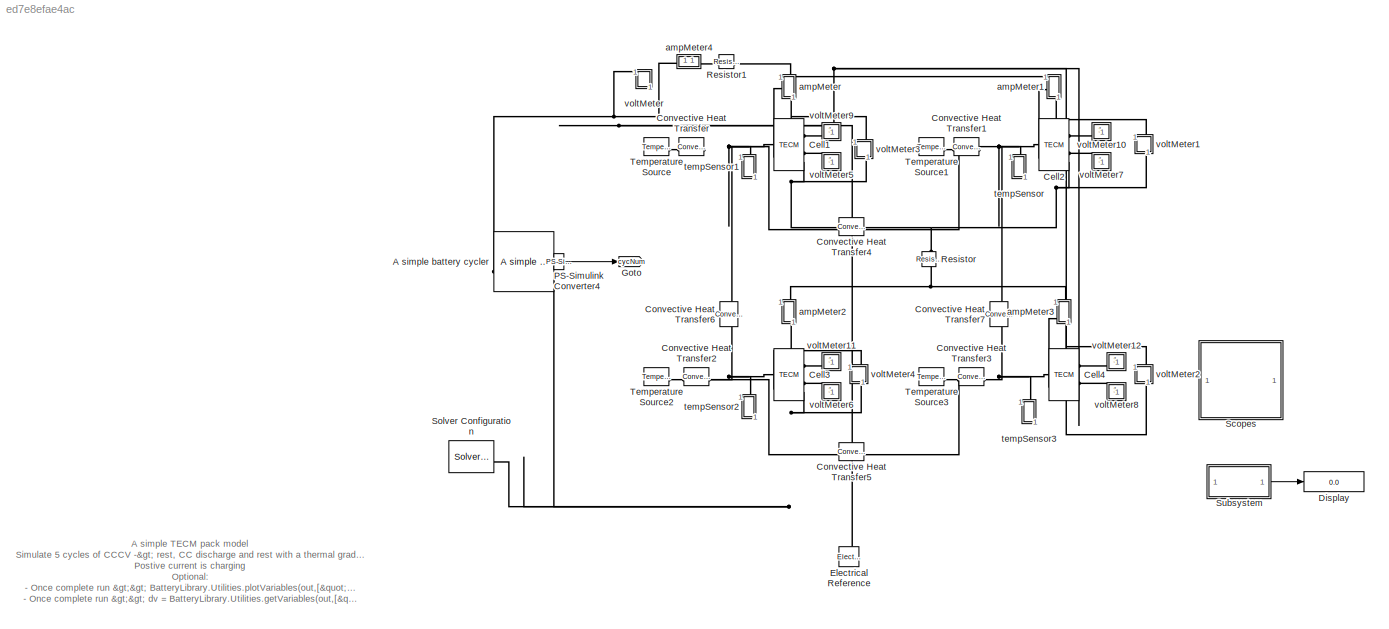
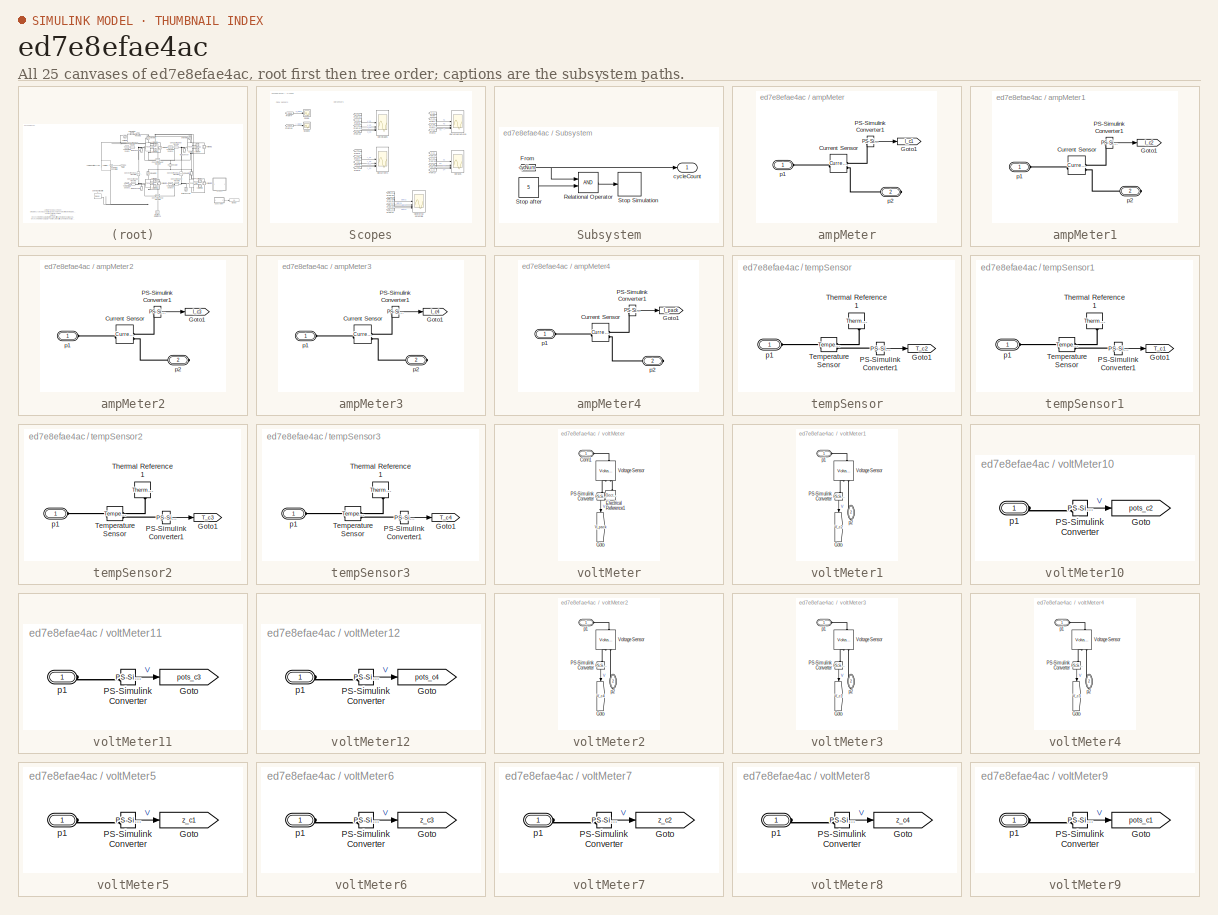
[diagram: thumbnail index - all 25 canvases of the model, root first then tree order]
MODEL slx_ed7e8efae4ac
KIND model
CONFIG AbsTol = auto
CONFIG EnableMultiTasking = off
CONFIG FixedStep = auto
CONFIG MaxStep = auto
CONFIG MinStep = auto
CONFIG RelTol = auto
CONFIG SampleTimeConstraint = Unconstrained
CONFIG SolverName = daessc
CONFIG StartTime = 0.0
CONFIG StopTime = 20E4
BLOCK [Reference] A simple battery cycler  REF=BatteryLibrary_lib/Utilities/A simple battery
cycler
  SourceBlock = BatteryLibrary_lib/Utilities/A simple battery\ncycler
  SourceType = A simple battery\ncycler
BLOCK [Reference] Cell1  REF=BatteryLibrary_lib/Models/TECM
  SourceBlock = BatteryLibrary_lib/Models/TECM
  SourceType = TECM
BLOCK [Reference] Cell2  REF=BatteryLibrary_lib/Models/TECM
  SourceBlock = BatteryLibrary_lib/Models/TECM
  SourceType = TECM
BLOCK [Reference] Cell3  REF=BatteryLibrary_lib/Models/TECM
  SourceBlock = BatteryLibrary_lib/Models/TECM
  SourceType = TECM
BLOCK [Reference] Cell4  REF=BatteryLibrary_lib/Models/TECM
  SourceBlock = BatteryLibrary_lib/Models/TECM
  SourceType = TECM
BLOCK [Reference] Convective Heat Transfer  REF=fl_lib/Thermal/Thermal Elements/Convective Heat
Transfer
  NameLocation = top
  SourceBlock = fl_lib/Thermal/Thermal Elements/Convective Heat\nTransfer
  SourceType = Convective Heat\nTransfer
BLOCK [Reference] Convective Heat Transfer1  REF=fl_lib/Thermal/Thermal Elements/Convective Heat
Transfer
  NameLocation = top
  SourceBlock = fl_lib/Thermal/Thermal Elements/Convective Heat\nTransfer
  SourceType = Convective Heat\nTransfer
BLOCK [Reference] Convective Heat Transfer2  REF=fl_lib/Thermal/Thermal Elements/Convective Heat
Transfer
  NameLocation = top
  SourceBlock = fl_lib/Thermal/Thermal Elements/Convective Heat\nTransfer
  SourceType = Convective Heat\nTransfer
BLOCK [Reference] Convective Heat Transfer3  REF=fl_lib/Thermal/Thermal Elements/Convective Heat
Transfer
  NameLocation = top
  SourceBlock = fl_lib/Thermal/Thermal Elements/Convective Heat\nTransfer
  SourceType = Convective Heat\nTransfer
BLOCK [Reference] Convective Heat Transfer4  REF=fl_lib/Thermal/Thermal Elements/Convective Heat
Transfer
  NameLocation = top
  SourceBlock = fl_lib/Thermal/Thermal Elements/Convective Heat\nTransfer
  SourceType = Convective Heat\nTransfer
BLOCK [Reference] Convective Heat Transfer5  REF=fl_lib/Thermal/Thermal Elements/Convective Heat
Transfer
  NameLocation = top
  SourceBlock = fl_lib/Thermal/Thermal Elements/Convective Heat\nTransfer
  SourceType = Convective Heat\nTransfer
BLOCK [Reference] Convective Heat Transfer6  REF=fl_lib/Thermal/Thermal Elements/Convective Heat
Transfer
  NameLocation = left
  SourceBlock = fl_lib/Thermal/Thermal Elements/Convective Heat\nTransfer
  SourceType = Convective Heat\nTransfer
BLOCK [Reference] Convective Heat Transfer7  REF=fl_lib/Thermal/Thermal Elements/Convective Heat
Transfer
  NameLocation = left
  SourceBlock = fl_lib/Thermal/Thermal Elements/Convective Heat\nTransfer
  SourceType = Convective Heat\nTransfer
BLOCK [Display] Display
  Decimation = 1
BLOCK [Reference] Electrical Reference  REF=fl_lib/Electrical/Electrical Elements/Electrical Reference
  NameLocation = right
  SourceBlock = fl_lib/Electrical/Electrical Elements/Electrical Reference
  SourceType = Electrical Reference
BLOCK [Goto] Goto
  GotoTag = cycNum
  TagVisibility = global
BLOCK [Reference] PS-Simulink Converter4  REF=nesl_utility/PS-Simulink
Converter
  SourceBlock = nesl_utility/PS-Simulink\nConverter
  SourceType = PS-Simulink\nConverter
BLOCK [Reference] Resistor  REF=fl_lib/Electrical/Electrical Elements/Resistor
  NameLocation = right
  SourceBlock = fl_lib/Electrical/Electrical Elements/Resistor
  SourceType = Resistor
BLOCK [Reference] Resistor1  REF=fl_lib/Electrical/Electrical Elements/Resistor
  SourceBlock = fl_lib/Electrical/Electrical Elements/Resistor
  SourceType = Resistor
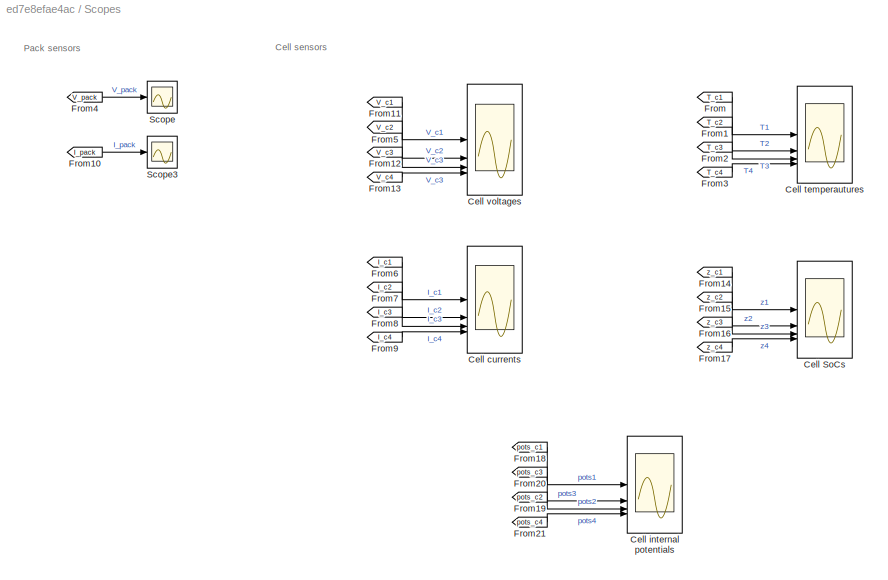
BLOCK [SubSystem] Scopes
BLOCK [Scope] Scopes/Cell SoCs
  Floating = off
  NumInputPorts = 4
  ScopeSpecificationString = Simulink.scopes.TimeScopeBlockCfg('CurrentConfiguration', extmgr.ConfigurationSet(extmgr.Configuration('Core','General UI',true),extmgr.Configuration('Core','Source UI',true),extmgr.Configuration('Sources','WiredSimulink',true,'DataLoggingVariableName','ScopeData3'),extmgr.Configuration('Visuals','Time Domain',true,'SerializedDisplays',{struct('MinYLimReal','-0.2076','MaxYLimReal','1.11915','YLabe...<+1468ch>
BLOCK [Scope] Scopes/Cell currents
  Floating = off
  NumInputPorts = 4
  ScopeSpecificationString = Simulink.scopes.TimeScopeBlockCfg('CurrentConfiguration', extmgr.ConfigurationSet(extmgr.Configuration('Core','General UI',true),extmgr.Configuration('Core','Source UI',true),extmgr.Configuration('Sources','WiredSimulink',true,'DataLoggingVariableName','ScopeData3'),extmgr.Configuration('Visuals','Time Domain',true,'SerializedDisplays',{struct('MinYLimReal','-6.40722','MaxYLimReal','3.19808','YLab...<+1544ch>
BLOCK [Scope] Scopes/Cell internal potentials
  Floating = off
  NumInputPorts = 4
  ScopeSpecificationString = Simulink.scopes.TimeScopeBlockCfg('CurrentConfiguration', extmgr.ConfigurationSet(extmgr.Configuration('Core','General UI',true),extmgr.Configuration('Core','Source UI',true),extmgr.Configuration('Sources','WiredSimulink',true,'DataLoggingVariableName','ScopeData1'),extmgr.Configuration('Visuals','Time Domain',true,'SerializedDisplays',{struct('MinYLimReal','-0.31247','MaxYLimReal','0.14166','YLab...<+3579ch>
BLOCK [Scope] Scopes/Cell temperautures
  Floating = off
  NumInputPorts = 4
  ScopeSpecificationString = Simulink.scopes.TimeScopeBlockCfg('CurrentConfiguration', extmgr.ConfigurationSet(extmgr.Configuration('Core','General UI',true),extmgr.Configuration('Core','Source UI',true),extmgr.Configuration('Sources','WiredSimulink',true,'DataLoggingVariableName','ScopeData2'),extmgr.Configuration('Visuals','Time Domain',true,'SerializedDisplays',{struct('MinYLimReal','291.6977','MaxYLimReal','319.78091','YL...<+1480ch>
BLOCK [Scope] Scopes/Cell voltages
  Floating = off
  NumInputPorts = 4
  ScopeSpecificationString = Simulink.scopes.TimeScopeBlockCfg('CurrentConfiguration', extmgr.ConfigurationSet(extmgr.Configuration('Core','General UI',true),extmgr.Configuration('Core','Source UI',true),extmgr.Configuration('Sources','WiredSimulink',true,'DataLoggingVariableName','ScopeData2'),extmgr.Configuration('Visuals','Time Domain',true,'SerializedDisplays',{struct('MinYLimReal','2.97922','MaxYLimReal','4.27957','YLabe...<+1569ch>
BLOCK [From] Scopes/From
  GotoTag = T_c1
  TagVisibility = global
BLOCK [From] Scopes/From1
  GotoTag = T_c2
  TagVisibility = global
BLOCK [From] Scopes/From10
  GotoTag = I_pack
  TagVisibility = global
BLOCK [From] Scopes/From11
  GotoTag = V_c1
  TagVisibility = global
BLOCK [From] Scopes/From12
  GotoTag = V_c3
  TagVisibility = global
BLOCK [From] Scopes/From13
  GotoTag = V_c4
  TagVisibility = global
BLOCK [From] Scopes/From14
  GotoTag = z_c1
  TagVisibility = global
BLOCK [From] Scopes/From15
  GotoTag = z_c2
  TagVisibility = global
BLOCK [From] Scopes/From16
  GotoTag = z_c3
  TagVisibility = global
BLOCK [From] Scopes/From17
  GotoTag = z_c4
  TagVisibility = global
BLOCK [From] Scopes/From18
  GotoTag = pots_c1
  TagVisibility = global
BLOCK [From] Scopes/From19
  GotoTag = pots_c2
  TagVisibility = global
BLOCK [From] Scopes/From2
  GotoTag = T_c3
  TagVisibility = global
BLOCK [From] Scopes/From20
  GotoTag = pots_c3
  TagVisibility = global
BLOCK [From] Scopes/From21
  GotoTag = pots_c4
  TagVisibility = global
BLOCK [From] Scopes/From3
  GotoTag = T_c4
  TagVisibility = global
BLOCK [From] Scopes/From4
  GotoTag = V_pack
  TagVisibility = global
BLOCK [From] Scopes/From5
  GotoTag = V_c2
  TagVisibility = global
BLOCK [From] Scopes/From6
  GotoTag = I_c1
  TagVisibility = global
BLOCK [From] Scopes/From7
  GotoTag = I_c2
  TagVisibility = global
BLOCK [From] Scopes/From8
  GotoTag = I_c3
  TagVisibility = global
BLOCK [From] Scopes/From9
  GotoTag = I_c4
  TagVisibility = global
BLOCK [Scope] Scopes/Scope
  Floating = off
  NumInputPorts = 1
  ScopeSpecificationString = Simulink.scopes.TimeScopeBlockCfg('CurrentConfiguration', extmgr.ConfigurationSet(extmgr.Configuration('Core','General UI',true),extmgr.Configuration('Core','Source UI',true),extmgr.Configuration('Sources','WiredSimulink',true,'DataLoggingVariableName','ScopeData1'),extmgr.Configuration('Visuals','Time Domain',true,'SerializedDisplays',{struct('MinYLimReal','7.48991','MaxYLimReal','8.39001','YLabe...<+1434ch>
BLOCK [Scope] Scopes/Scope3
  Floating = off
  NumInputPorts = 1
  ScopeSpecificationString = Simulink.scopes.TimeScopeBlockCfg('CurrentConfiguration', extmgr.ConfigurationSet(extmgr.Configuration('Core','General UI',true),extmgr.Configuration('Core','Source UI',true),extmgr.Configuration('Sources','WiredSimulink',true,'DataLoggingVariableName','ScopeData1'),extmgr.Configuration('Visuals','Time Domain',true,'SerializedDisplays',{struct('MinYLimReal','-11.75','MaxYLimReal','5.75','YLabelRea...<+1541ch>
BLOCK [Reference] Solver Configuration  REF=nesl_utility/Solver
Configuration
  SourceBlock = nesl_utility/Solver\nConfiguration
  SourceType = Solver\nConfiguration
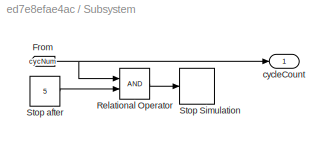
BLOCK [SubSystem] Subsystem
BLOCK [From] Subsystem/From
  GotoTag = cycNum
  TagVisibility = global
BLOCK [RelationalOperator] Subsystem/Relational Operator
  InputSameDT = off
  OutDataTypeStr = boolean
  RndMeth = Simplest
BLOCK [Stop] Subsystem/Stop Simulation
BLOCK [Constant] Subsystem/Stop after
  Value = 5
BLOCK [Outport] Subsystem/cycleCount
BLOCK [Reference] Temperature Source  REF=fl_lib/Thermal/Thermal Sources/Temperature Source
  SourceBlock = fl_lib/Thermal/Thermal Sources/Temperature Source
  SourceType = Temperature Source
BLOCK [Reference] Temperature Source1  REF=fl_lib/Thermal/Thermal Sources/Temperature Source
  SourceBlock = fl_lib/Thermal/Thermal Sources/Temperature Source
  SourceType = Temperature Source
BLOCK [Reference] Temperature Source2  REF=fl_lib/Thermal/Thermal Sources/Temperature Source
  SourceBlock = fl_lib/Thermal/Thermal Sources/Temperature Source
  SourceType = Temperature Source
BLOCK [Reference] Temperature Source3  REF=fl_lib/Thermal/Thermal Sources/Temperature Source
  SourceBlock = fl_lib/Thermal/Thermal Sources/Temperature Source
  SourceType = Temperature Source
BLOCK [SubSystem] ampMeter
  NameLocation = left
  ShowPortLabels = none
BLOCK [Reference] ampMeter/Current Sensor  REF=fl_lib/Electrical/Electrical Sensors/Current Sensor
  SourceBlock = fl_lib/Electrical/Electrical Sensors/Current Sensor
  SourceType = Current Sensor
BLOCK [Goto] ampMeter/Goto1
  GotoTag = I_c1
  TagVisibility = global
BLOCK [Reference] ampMeter/PS-Simulink Converter1  REF=nesl_utility/PS-Simulink
Converter
  SourceBlock = nesl_utility/PS-Simulink\nConverter
  SourceType = PS-Simulink\nConverter
BLOCK [PMIOPort] ampMeter/p1
  Side = Left
BLOCK [PMIOPort] ampMeter/p2
  Port = 2
  Side = Right
BLOCK [SubSystem] ampMeter1
  NameLocation = left
  ShowPortLabels = none
BLOCK [Reference] ampMeter1/Current Sensor  REF=fl_lib/Electrical/Electrical Sensors/Current Sensor
  SourceBlock = fl_lib/Electrical/Electrical Sensors/Current Sensor
  SourceType = Current Sensor
BLOCK [Goto] ampMeter1/Goto1
  GotoTag = I_c2
  TagVisibility = global
BLOCK [Reference] ampMeter1/PS-Simulink Converter1  REF=nesl_utility/PS-Simulink
Converter
  SourceBlock = nesl_utility/PS-Simulink\nConverter
  SourceType = PS-Simulink\nConverter
BLOCK [PMIOPort] ampMeter1/p1
  Side = Left
BLOCK [PMIOPort] ampMeter1/p2
  Port = 2
  Side = Right
BLOCK [SubSystem] ampMeter2
  NameLocation = left
  ShowPortLabels = none
BLOCK [Reference] ampMeter2/Current Sensor  REF=fl_lib/Electrical/Electrical Sensors/Current Sensor
  SourceBlock = fl_lib/Electrical/Electrical Sensors/Current Sensor
  SourceType = Current Sensor
BLOCK [Goto] ampMeter2/Goto1
  GotoTag = I_c3
  TagVisibility = global
BLOCK [Reference] ampMeter2/PS-Simulink Converter1  REF=nesl_utility/PS-Simulink
Converter
  SourceBlock = nesl_utility/PS-Simulink\nConverter
  SourceType = PS-Simulink\nConverter
BLOCK [PMIOPort] ampMeter2/p1
  Side = Left
BLOCK [PMIOPort] ampMeter2/p2
  Port = 2
  Side = Right
BLOCK [SubSystem] ampMeter3
  NameLocation = left
  ShowPortLabels = none
BLOCK [Reference] ampMeter3/Current Sensor  REF=fl_lib/Electrical/Electrical Sensors/Current Sensor
  SourceBlock = fl_lib/Electrical/Electrical Sensors/Current Sensor
  SourceType = Current Sensor
BLOCK [Goto] ampMeter3/Goto1
  GotoTag = I_c4
  TagVisibility = global
BLOCK [Reference] ampMeter3/PS-Simulink Converter1  REF=nesl_utility/PS-Simulink
Converter
  SourceBlock = nesl_utility/PS-Simulink\nConverter
  SourceType = PS-Simulink\nConverter
BLOCK [PMIOPort] ampMeter3/p1
  Side = Left
BLOCK [PMIOPort] ampMeter3/p2
  Port = 2
  Side = Right
BLOCK [SubSystem] ampMeter4
  ShowPortLabels = none
BLOCK [Reference] ampMeter4/Current Sensor  REF=fl_lib/Electrical/Electrical Sensors/Current Sensor
  SourceBlock = fl_lib/Electrical/Electrical Sensors/Current Sensor
  SourceType = Current Sensor
BLOCK [Goto] ampMeter4/Goto1
  GotoTag = I_pack
  TagVisibility = global
BLOCK [Reference] ampMeter4/PS-Simulink Converter1  REF=nesl_utility/PS-Simulink
Converter
  SourceBlock = nesl_utility/PS-Simulink\nConverter
  SourceType = PS-Simulink\nConverter
BLOCK [PMIOPort] ampMeter4/p1
  Side = Left
BLOCK [PMIOPort] ampMeter4/p2
  Port = 2
  Side = Right
BLOCK [SubSystem] tempSensor
  NameLocation = left
  ShowPortLabels = none
BLOCK [Goto] tempSensor/Goto1
  GotoTag = T_c2
  TagVisibility = global
BLOCK [Reference] tempSensor/PS-Simulink Converter1  REF=nesl_utility/PS-Simulink
Converter
  SourceBlock = nesl_utility/PS-Simulink\nConverter
  SourceType = PS-Simulink\nConverter
BLOCK [Reference] tempSensor/Temperature Sensor  REF=fl_lib/Thermal/Thermal Sensors/Temperature Sensor
  SourceBlock = fl_lib/Thermal/Thermal Sensors/Temperature Sensor
  SourceType = Temperature Sensor
BLOCK [Reference] tempSensor/Thermal Reference1  REF=fl_lib/Thermal/Thermal Elements/Thermal Reference
  NameLocation = left
  SourceBlock = fl_lib/Thermal/Thermal Elements/Thermal Reference
  SourceType = Thermal Reference
BLOCK [PMIOPort] tempSensor/p1
  Side = Left
BLOCK [SubSystem] tempSensor1
  NameLocation = left
  ShowPortLabels = none
BLOCK [Goto] tempSensor1/Goto1
  GotoTag = T_c1
  TagVisibility = global
BLOCK [Reference] tempSensor1/PS-Simulink Converter1  REF=nesl_utility/PS-Simulink
Converter
  SourceBlock = nesl_utility/PS-Simulink\nConverter
  SourceType = PS-Simulink\nConverter
BLOCK [Reference] tempSensor1/Temperature Sensor  REF=fl_lib/Thermal/Thermal Sensors/Temperature Sensor
  SourceBlock = fl_lib/Thermal/Thermal Sensors/Temperature Sensor
  SourceType = Temperature Sensor
BLOCK [Reference] tempSensor1/Thermal Reference1  REF=fl_lib/Thermal/Thermal Elements/Thermal Reference
  NameLocation = left
  SourceBlock = fl_lib/Thermal/Thermal Elements/Thermal Reference
  SourceType = Thermal Reference
BLOCK [PMIOPort] tempSensor1/p1
  Side = Left
BLOCK [SubSystem] tempSensor2
  NameLocation = left
  ShowPortLabels = none
BLOCK [Goto] tempSensor2/Goto1
  GotoTag = T_c3
  TagVisibility = global
BLOCK [Reference] tempSensor2/PS-Simulink Converter1  REF=nesl_utility/PS-Simulink
Converter
  SourceBlock = nesl_utility/PS-Simulink\nConverter
  SourceType = PS-Simulink\nConverter
BLOCK [Reference] tempSensor2/Temperature Sensor  REF=fl_lib/Thermal/Thermal Sensors/Temperature Sensor
  SourceBlock = fl_lib/Thermal/Thermal Sensors/Temperature Sensor
  SourceType = Temperature Sensor
BLOCK [Reference] tempSensor2/Thermal Reference1  REF=fl_lib/Thermal/Thermal Elements/Thermal Reference
  NameLocation = left
  SourceBlock = fl_lib/Thermal/Thermal Elements/Thermal Reference
  SourceType = Thermal Reference
BLOCK [PMIOPort] tempSensor2/p1
  Side = Left
BLOCK [SubSystem] tempSensor3
  NameLocation = left
  ShowPortLabels = none
BLOCK [Goto] tempSensor3/Goto1
  GotoTag = T_c4
  TagVisibility = global
BLOCK [Reference] tempSensor3/PS-Simulink Converter1  REF=nesl_utility/PS-Simulink
Converter
  SourceBlock = nesl_utility/PS-Simulink\nConverter
  SourceType = PS-Simulink\nConverter
BLOCK [Reference] tempSensor3/Temperature Sensor  REF=fl_lib/Thermal/Thermal Sensors/Temperature Sensor
  SourceBlock = fl_lib/Thermal/Thermal Sensors/Temperature Sensor
  SourceType = Temperature Sensor
BLOCK [Reference] tempSensor3/Thermal Reference1  REF=fl_lib/Thermal/Thermal Elements/Thermal Reference
  NameLocation = left
  SourceBlock = fl_lib/Thermal/Thermal Elements/Thermal Reference
  SourceType = Thermal Reference
BLOCK [PMIOPort] tempSensor3/p1
  Side = Left
BLOCK [SubSystem] voltMeter
  NameLocation = left
  ShowPortLabels = none
BLOCK [PMIOPort] voltMeter/Conn1
  Side = Left
BLOCK [Reference] voltMeter/Electrical Reference1  REF=fl_lib/Electrical/Electrical Elements/Electrical Reference
  NameLocation = right
  SourceBlock = fl_lib/Electrical/Electrical Elements/Electrical Reference
  SourceType = Electrical Reference
BLOCK [Goto] voltMeter/Goto
  GotoTag = V_pack
  NameLocation = left
  TagVisibility = global
BLOCK [Reference] voltMeter/PS-Simulink Converter  REF=nesl_utility/PS-Simulink
Converter
  NameLocation = left
  SourceBlock = nesl_utility/PS-Simulink\nConverter
  SourceType = PS-Simulink\nConverter
BLOCK [Reference] voltMeter/Voltage Sensor  REF=fl_lib/Electrical/Electrical Sensors/Voltage Sensor
  NameLocation = right
  SourceBlock = fl_lib/Electrical/Electrical Sensors/Voltage Sensor
  SourceType = Voltage Sensor
BLOCK [SubSystem] voltMeter1
  NameLocation = left
  ShowPortLabels = none
BLOCK [Goto] voltMeter1/Goto
  GotoTag = V_c2
  NameLocation = left
  TagVisibility = global
BLOCK [Reference] voltMeter1/PS-Simulink Converter  REF=nesl_utility/PS-Simulink
Converter
  NameLocation = left
  SourceBlock = nesl_utility/PS-Simulink\nConverter
  SourceType = PS-Simulink\nConverter
BLOCK [Reference] voltMeter1/Voltage Sensor  REF=fl_lib/Electrical/Electrical Sensors/Voltage Sensor
  NameLocation = right
  SourceBlock = fl_lib/Electrical/Electrical Sensors/Voltage Sensor
  SourceType = Voltage Sensor
BLOCK [PMIOPort] voltMeter1/p1
  Side = Left
BLOCK [PMIOPort] voltMeter1/p2
  NameLocation = right
  Port = 2
  Side = Right
BLOCK [SubSystem] voltMeter10
  ShowPortLabels = none
BLOCK [Goto] voltMeter10/Goto
  GotoTag = pots_c2
  TagVisibility = global
BLOCK [Reference] voltMeter10/PS-Simulink Converter  REF=nesl_utility/PS-Simulink
Converter
  SourceBlock = nesl_utility/PS-Simulink\nConverter
  SourceType = PS-Simulink\nConverter
BLOCK [PMIOPort] voltMeter10/p1
  Side = Left
BLOCK [SubSystem] voltMeter11
  ShowPortLabels = none
BLOCK [Goto] voltMeter11/Goto
  GotoTag = pots_c3
  TagVisibility = global
BLOCK [Reference] voltMeter11/PS-Simulink Converter  REF=nesl_utility/PS-Simulink
Converter
  SourceBlock = nesl_utility/PS-Simulink\nConverter
  SourceType = PS-Simulink\nConverter
BLOCK [PMIOPort] voltMeter11/p1
  Side = Left
BLOCK [SubSystem] voltMeter12
  ShowPortLabels = none
BLOCK [Goto] voltMeter12/Goto
  GotoTag = pots_c4
  TagVisibility = global
BLOCK [Reference] voltMeter12/PS-Simulink Converter  REF=nesl_utility/PS-Simulink
Converter
  SourceBlock = nesl_utility/PS-Simulink\nConverter
  SourceType = PS-Simulink\nConverter
BLOCK [PMIOPort] voltMeter12/p1
  Side = Left
BLOCK [SubSystem] voltMeter2
  NameLocation = left
  ShowPortLabels = none
BLOCK [Goto] voltMeter2/Goto
  GotoTag = V_c4
  NameLocation = left
  TagVisibility = global
BLOCK [Reference] voltMeter2/PS-Simulink Converter  REF=nesl_utility/PS-Simulink
Converter
  NameLocation = left
  SourceBlock = nesl_utility/PS-Simulink\nConverter
  SourceType = PS-Simulink\nConverter
BLOCK [Reference] voltMeter2/Voltage Sensor  REF=fl_lib/Electrical/Electrical Sensors/Voltage Sensor
  NameLocation = right
  SourceBlock = fl_lib/Electrical/Electrical Sensors/Voltage Sensor
  SourceType = Voltage Sensor
BLOCK [PMIOPort] voltMeter2/p1
  Side = Left
BLOCK [PMIOPort] voltMeter2/p2
  NameLocation = right
  Port = 2
  Side = Right
BLOCK [SubSystem] voltMeter3
  NameLocation = left
  ShowPortLabels = none
BLOCK [Goto] voltMeter3/Goto
  GotoTag = V_c1
  NameLocation = left
  TagVisibility = global
BLOCK [Reference] voltMeter3/PS-Simulink Converter  REF=nesl_utility/PS-Simulink
Converter
  NameLocation = left
  SourceBlock = nesl_utility/PS-Simulink\nConverter
  SourceType = PS-Simulink\nConverter
BLOCK [Reference] voltMeter3/Voltage Sensor  REF=fl_lib/Electrical/Electrical Sensors/Voltage Sensor
  NameLocation = right
  SourceBlock = fl_lib/Electrical/Electrical Sensors/Voltage Sensor
  SourceType = Voltage Sensor
BLOCK [PMIOPort] voltMeter3/p1
  Side = Left
BLOCK [PMIOPort] voltMeter3/p2
  NameLocation = right
  Port = 2
  Side = Right
BLOCK [SubSystem] voltMeter4
  NameLocation = left
  ShowPortLabels = none
BLOCK [Goto] voltMeter4/Goto
  GotoTag = V_c3
  NameLocation = left
  TagVisibility = global
BLOCK [Reference] voltMeter4/PS-Simulink Converter  REF=nesl_utility/PS-Simulink
Converter
  NameLocation = left
  SourceBlock = nesl_utility/PS-Simulink\nConverter
  SourceType = PS-Simulink\nConverter
BLOCK [Reference] voltMeter4/Voltage Sensor  REF=fl_lib/Electrical/Electrical Sensors/Voltage Sensor
  NameLocation = right
  SourceBlock = fl_lib/Electrical/Electrical Sensors/Voltage Sensor
  SourceType = Voltage Sensor
BLOCK [PMIOPort] voltMeter4/p1
  Side = Left
BLOCK [PMIOPort] voltMeter4/p2
  NameLocation = right
  Port = 2
  Side = Right
BLOCK [SubSystem] voltMeter5
  ShowPortLabels = none
BLOCK [Goto] voltMeter5/Goto
  GotoTag = z_c1
  TagVisibility = global
BLOCK [Reference] voltMeter5/PS-Simulink Converter  REF=nesl_utility/PS-Simulink
Converter
  SourceBlock = nesl_utility/PS-Simulink\nConverter
  SourceType = PS-Simulink\nConverter
BLOCK [PMIOPort] voltMeter5/p1
  Side = Left
BLOCK [SubSystem] voltMeter6
  ShowPortLabels = none
BLOCK [Goto] voltMeter6/Goto
  GotoTag = z_c3
  TagVisibility = global
BLOCK [Reference] voltMeter6/PS-Simulink Converter  REF=nesl_utility/PS-Simulink
Converter
  SourceBlock = nesl_utility/PS-Simulink\nConverter
  SourceType = PS-Simulink\nConverter
BLOCK [PMIOPort] voltMeter6/p1
  Side = Left
BLOCK [SubSystem] voltMeter7
  ShowPortLabels = none
BLOCK [Goto] voltMeter7/Goto
  GotoTag = z_c2
  TagVisibility = global
BLOCK [Reference] voltMeter7/PS-Simulink Converter  REF=nesl_utility/PS-Simulink
Converter
  SourceBlock = nesl_utility/PS-Simulink\nConverter
  SourceType = PS-Simulink\nConverter
BLOCK [PMIOPort] voltMeter7/p1
  Side = Left
BLOCK [SubSystem] voltMeter8
  ShowPortLabels = none
BLOCK [Goto] voltMeter8/Goto
  GotoTag = z_c4
  TagVisibility = global
BLOCK [Reference] voltMeter8/PS-Simulink Converter  REF=nesl_utility/PS-Simulink
Converter
  SourceBlock = nesl_utility/PS-Simulink\nConverter
  SourceType = PS-Simulink\nConverter
BLOCK [PMIOPort] voltMeter8/p1
  Side = Left
BLOCK [SubSystem] voltMeter9
  ShowPortLabels = none
BLOCK [Goto] voltMeter9/Goto
  GotoTag = pots_c1
  TagVisibility = global
BLOCK [Reference] voltMeter9/PS-Simulink Converter  REF=nesl_utility/PS-Simulink
Converter
  SourceBlock = nesl_utility/PS-Simulink\nConverter
  SourceType = PS-Simulink\nConverter
BLOCK [PMIOPort] voltMeter9/p1
  Side = Left
ANNOTATION (root): A simple TECM pack model Simulate 5 cycles of CCCV -> rest, CC discharge and rest with a thermal gradient (left to right) Postive current is charging Optional: - Once complete run >> BatteryLibrary.Utilities.plotVariables(out,["Cell1", "Cell2","Cell3","Cell4" ]) on the command line or, even better, on a live script to see summary results - Once complete run >> dv = BatteryLibrary.Utilities.getVari...<+108ch>
ANNOTATION Scopes: Cell sensors
ANNOTATION Scopes: Pack sensors
LINE PS-Simulink Converter4:1 -> Goto:1
LINE Scopes/From10:1 -> Scopes/Scope3:1
LINE Scopes/From11:1 -> Scopes/Cell voltages:1
LINE Scopes/From12:1 -> Scopes/Cell voltages:3
LINE Scopes/From13:1 -> Scopes/Cell voltages:4
LINE Scopes/From14:1 -> Scopes/Cell SoCs:1
LINE Scopes/From15:1 -> Scopes/Cell SoCs:2
LINE Scopes/From16:1 -> Scopes/Cell SoCs:3
LINE Scopes/From17:1 -> Scopes/Cell SoCs:4
LINE Scopes/From18:1 -> Scopes/Cell internal potentials:1
LINE Scopes/From19:1 -> Scopes/Cell internal potentials:3
LINE Scopes/From1:1 -> Scopes/Cell temperautures:2
LINE Scopes/From20:1 -> Scopes/Cell internal potentials:2
LINE Scopes/From21:1 -> Scopes/Cell internal potentials:4
LINE Scopes/From2:1 -> Scopes/Cell temperautures:3
LINE Scopes/From3:1 -> Scopes/Cell temperautures:4
LINE Scopes/From4:1 -> Scopes/Scope:1
LINE Scopes/From5:1 -> Scopes/Cell voltages:2
LINE Scopes/From6:1 -> Scopes/Cell currents:1
LINE Scopes/From7:1 -> Scopes/Cell currents:2
LINE Scopes/From8:1 -> Scopes/Cell currents:3
LINE Scopes/From9:1 -> Scopes/Cell currents:4
LINE Scopes/From:1 -> Scopes/Cell temperautures:1
NET Subsystem/From:1 -> Subsystem/Relational Operator:1, Subsystem/cycleCount:1
LINE Subsystem/Relational Operator:1 -> Subsystem/Stop Simulation:1
LINE Subsystem/Stop after:1 -> Subsystem/Relational Operator:2
LINE Subsystem:1 -> Display:1
LINE ampMeter/PS-Simulink Converter1:1 -> ampMeter/Goto1:1
LINE ampMeter1/PS-Simulink Converter1:1 -> ampMeter1/Goto1:1
LINE ampMeter2/PS-Simulink Converter1:1 -> ampMeter2/Goto1:1
LINE ampMeter3/PS-Simulink Converter1:1 -> ampMeter3/Goto1:1
LINE ampMeter4/PS-Simulink Converter1:1 -> ampMeter4/Goto1:1
LINE tempSensor/PS-Simulink Converter1:1 -> tempSensor/Goto1:1
LINE tempSensor1/PS-Simulink Converter1:1 -> tempSensor1/Goto1:1
LINE tempSensor2/PS-Simulink Converter1:1 -> tempSensor2/Goto1:1
LINE tempSensor3/PS-Simulink Converter1:1 -> tempSensor3/Goto1:1
LINE voltMeter/PS-Simulink Converter:1 -> voltMeter/Goto:1
LINE voltMeter1/PS-Simulink Converter:1 -> voltMeter1/Goto:1
LINE voltMeter10/PS-Simulink Converter:1 -> voltMeter10/Goto:1
LINE voltMeter11/PS-Simulink Converter:1 -> voltMeter11/Goto:1
LINE voltMeter12/PS-Simulink Converter:1 -> voltMeter12/Goto:1
LINE voltMeter2/PS-Simulink Converter:1 -> voltMeter2/Goto:1
LINE voltMeter3/PS-Simulink Converter:1 -> voltMeter3/Goto:1
LINE voltMeter4/PS-Simulink Converter:1 -> voltMeter4/Goto:1
LINE voltMeter5/PS-Simulink Converter:1 -> voltMeter5/Goto:1
LINE voltMeter6/PS-Simulink Converter:1 -> voltMeter6/Goto:1
LINE voltMeter7/PS-Simulink Converter:1 -> voltMeter7/Goto:1
LINE voltMeter8/PS-Simulink Converter:1 -> voltMeter8/Goto:1
LINE voltMeter9/PS-Simulink Converter:1 -> voltMeter9/Goto:1
PNET net1: A simple battery cycler:LConn1 -- ampMeter4:LConn1 -- voltMeter:LConn1
PLINE A simple battery cycler:RConn1 -- PS-Simulink Converter4:LConn1
PNET net2: A simple battery cycler:RConn2 -- Cell3:RConn4 -- Cell4:RConn4 -- Electrical Reference:LConn1 -- Solver Configuration:RConn1 -- voltMeter2:RConn1 -- voltMeter4:RConn1
PNET net3: Cell1:LConn1 -- Convective Heat Transfer4:RConn1 -- Convective Heat Transfer6:LConn1 -- Convective Heat Transfer:LConn1 -- tempSensor1:LConn1
PNET net4: Cell1:LConn2 -- ampMeter:RConn1 -- voltMeter3:LConn1
PLINE Cell1:RConn1 -- voltMeter9:LConn1
PLINE Cell1:RConn3 -- voltMeter5:LConn1
PNET net5: Cell1:RConn4 -- Cell2:RConn4 -- Resistor:RConn1 -- voltMeter1:RConn1 -- voltMeter3:RConn1
PNET net6: Cell2:LConn1 -- Convective Heat Transfer1:LConn1 -- Convective Heat Transfer4:LConn1 -- Convective Heat Transfer7:LConn1 -- tempSensor:LConn1
PNET net7: Cell2:LConn2 -- ampMeter1:RConn1 -- voltMeter1:LConn1
PLINE Cell2:RConn1 -- voltMeter10:LConn1
PLINE Cell2:RConn3 -- voltMeter7:LConn1
PNET net8: Cell3:LConn1 -- Convective Heat Transfer2:LConn1 -- Convective Heat Transfer5:RConn1 -- Convective Heat Transfer6:RConn1 -- tempSensor2:LConn1
PNET net9: Cell3:LConn2 -- ampMeter2:RConn1 -- voltMeter4:LConn1
PLINE Cell3:RConn1 -- voltMeter11:LConn1
PLINE Cell3:RConn3 -- voltMeter6:LConn1
PNET net10: Cell4:LConn1 -- Convective Heat Transfer3:LConn1 -- Convective Heat Transfer5:LConn1 -- Convective Heat Transfer7:RConn1 -- tempSensor3:LConn1
PNET net11: Cell4:LConn2 -- ampMeter3:RConn1 -- voltMeter2:LConn1
PLINE Cell4:RConn1 -- voltMeter12:LConn1
PLINE Cell4:RConn3 -- voltMeter8:LConn1
PLINE Convective Heat Transfer1:RConn1 -- Temperature Source1:LConn1
PLINE Convective Heat Transfer2:RConn1 -- Temperature Source2:LConn1
PLINE Convective Heat Transfer3:RConn1 -- Temperature Source3:LConn1
PLINE Convective Heat Transfer:RConn1 -- Temperature Source:LConn1
PLINE Resistor1:LConn1 -- ampMeter4:RConn1
PNET net12: Resistor1:RConn1 -- ampMeter1:LConn1 -- ampMeter:LConn1
PNET net13: Resistor:LConn1 -- ampMeter2:LConn1 -- ampMeter3:LConn1
PLINE ampMeter/Current Sensor:LConn1 -- ampMeter/p1:RConn1
PLINE ampMeter/Current Sensor:RConn1 -- ampMeter/PS-Simulink Converter1:LConn1
PLINE ampMeter/Current Sensor:RConn2 -- ampMeter/p2:RConn1
PLINE ampMeter1/Current Sensor:LConn1 -- ampMeter1/p1:RConn1
PLINE ampMeter1/Current Sensor:RConn1 -- ampMeter1/PS-Simulink Converter1:LConn1
PLINE ampMeter1/Current Sensor:RConn2 -- ampMeter1/p2:RConn1
PLINE ampMeter2/Current Sensor:LConn1 -- ampMeter2/p1:RConn1
PLINE ampMeter2/Current Sensor:RConn1 -- ampMeter2/PS-Simulink Converter1:LConn1
PLINE ampMeter2/Current Sensor:RConn2 -- ampMeter2/p2:RConn1
PLINE ampMeter3/Current Sensor:LConn1 -- ampMeter3/p1:RConn1
PLINE ampMeter3/Current Sensor:RConn1 -- ampMeter3/PS-Simulink Converter1:LConn1
PLINE ampMeter3/Current Sensor:RConn2 -- ampMeter3/p2:RConn1
PLINE ampMeter4/Current Sensor:LConn1 -- ampMeter4/p1:RConn1
PLINE ampMeter4/Current Sensor:RConn1 -- ampMeter4/PS-Simulink Converter1:LConn1
PLINE ampMeter4/Current Sensor:RConn2 -- ampMeter4/p2:RConn1
PLINE tempSensor/PS-Simulink Converter1:LConn1 -- tempSensor/Temperature Sensor:RConn2
PLINE tempSensor/Temperature Sensor:LConn1 -- tempSensor/p1:RConn1
PLINE tempSensor/Temperature Sensor:RConn1 -- tempSensor/Thermal Reference1:LConn1
PLINE tempSensor1/PS-Simulink Converter1:LConn1 -- tempSensor1/Temperature Sensor:RConn2
PLINE tempSensor1/Temperature Sensor:LConn1 -- tempSensor1/p1:RConn1
PLINE tempSensor1/Temperature Sensor:RConn1 -- tempSensor1/Thermal Reference1:LConn1
PLINE tempSensor2/PS-Simulink Converter1:LConn1 -- tempSensor2/Temperature Sensor:RConn2
PLINE tempSensor2/Temperature Sensor:LConn1 -- tempSensor2/p1:RConn1
PLINE tempSensor2/Temperature Sensor:RConn1 -- tempSensor2/Thermal Reference1:LConn1
PLINE tempSensor3/PS-Simulink Converter1:LConn1 -- tempSensor3/Temperature Sensor:RConn2
PLINE tempSensor3/Temperature Sensor:LConn1 -- tempSensor3/p1:RConn1
PLINE tempSensor3/Temperature Sensor:RConn1 -- tempSensor3/Thermal Reference1:LConn1
PLINE voltMeter/Conn1:RConn1 -- voltMeter/Voltage Sensor:LConn1
PLINE voltMeter/Electrical Reference1:LConn1 -- voltMeter/Voltage Sensor:RConn2
PLINE voltMeter/PS-Simulink Converter:LConn1 -- voltMeter/Voltage Sensor:RConn1
PLINE voltMeter1/PS-Simulink Converter:LConn1 -- voltMeter1/Voltage Sensor:RConn1
PLINE voltMeter1/Voltage Sensor:LConn1 -- voltMeter1/p1:RConn1
PLINE voltMeter1/Voltage Sensor:RConn2 -- voltMeter1/p2:RConn1
PLINE voltMeter10/PS-Simulink Converter:LConn1 -- voltMeter10/p1:RConn1
PLINE voltMeter11/PS-Simulink Converter:LConn1 -- voltMeter11/p1:RConn1
PLINE voltMeter12/PS-Simulink Converter:LConn1 -- voltMeter12/p1:RConn1
PLINE voltMeter2/PS-Simulink Converter:LConn1 -- voltMeter2/Voltage Sensor:RConn1
PLINE voltMeter2/Voltage Sensor:LConn1 -- voltMeter2/p1:RConn1
PLINE voltMeter2/Voltage Sensor:RConn2 -- voltMeter2/p2:RConn1
PLINE voltMeter3/PS-Simulink Converter:LConn1 -- voltMeter3/Voltage Sensor:RConn1
PLINE voltMeter3/Voltage Sensor:LConn1 -- voltMeter3/p1:RConn1
PLINE voltMeter3/Voltage Sensor:RConn2 -- voltMeter3/p2:RConn1
PLINE voltMeter4/PS-Simulink Converter:LConn1 -- voltMeter4/Voltage Sensor:RConn1
PLINE voltMeter4/Voltage Sensor:LConn1 -- voltMeter4/p1:RConn1
PLINE voltMeter4/Voltage Sensor:RConn2 -- voltMeter4/p2:RConn1
PLINE voltMeter5/PS-Simulink Converter:LConn1 -- voltMeter5/p1:RConn1
PLINE voltMeter6/PS-Simulink Converter:LConn1 -- voltMeter6/p1:RConn1
PLINE voltMeter7/PS-Simulink Converter:LConn1 -- voltMeter7/p1:RConn1
PLINE voltMeter8/PS-Simulink Converter:LConn1 -- voltMeter8/p1:RConn1
PLINE voltMeter9/PS-Simulink Converter:LConn1 -- voltMeter9/p1:RConn1
note: NET lines group one-source signal fan-out (src -> all destinations, sorted); 1:1 wires keep LINE; PNET lines group multi-terminal physical nets as a canonical sorted terminal list (undirected conserving connections); 2-terminal nets keep the pairwise PLINE form
